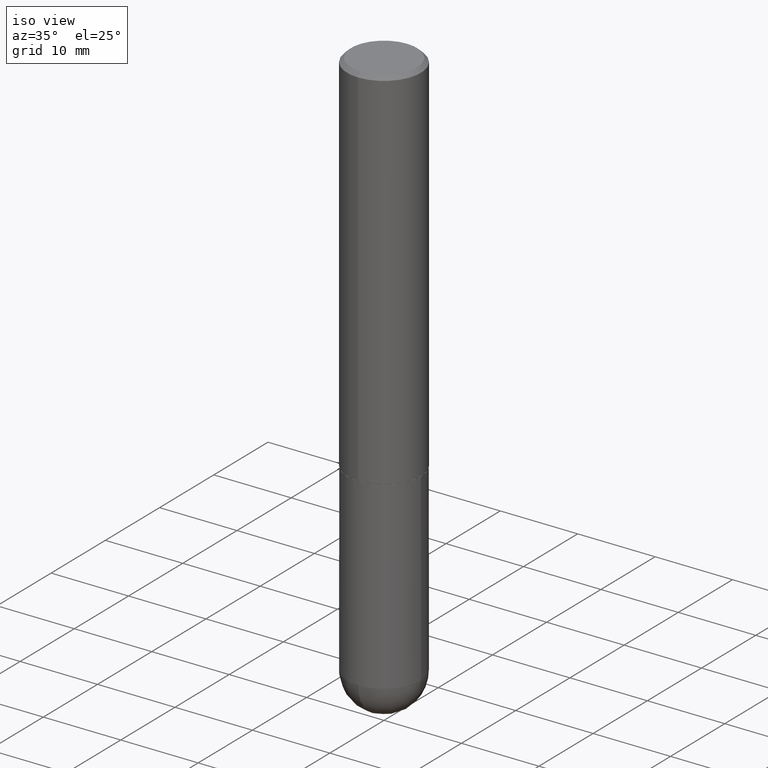
[diagram: clean part render]
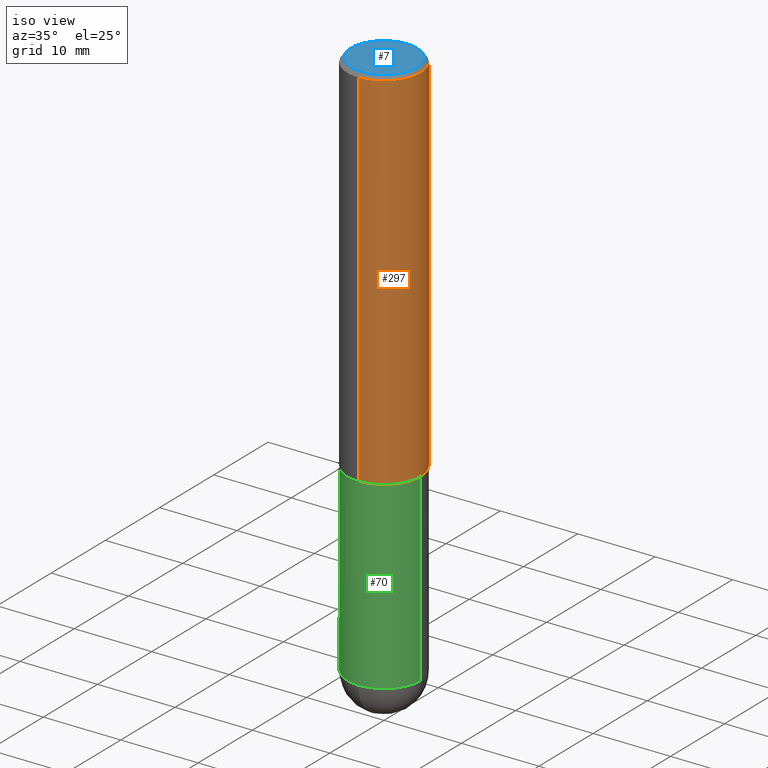
[diagram: same view with three faces highlighted in distinct colors, each labeled with its STEP entity id]
A machine part, iso view with three faces highlighted in distinct colors.
Their STEP definitions:

[orange] entity #297 — the highlighted cylindrical surface (partial cylindrical patch) has radius 4.7625 mm, axis along (-0, 0, 1).
#3 = CIRCLE ( 'NONE', #60, 0.1875000000000000555 ) ;
#18 = LINE ( 'NONE', #149, #41 ) ;
#41 = VECTOR ( 'NONE', #368, 39.37007874015748143 ) ;
#60 = AXIS2_PLACEMENT_3D ( 'NONE', #264, #137, #232 ) ;
#87 = AXIS2_PLACEMENT_3D ( 'NONE', #107, #162, #164 ) ;
#88 = DIRECTION ( 'NONE',  ( -2.444753274461231687E-29, 3.492506020997314198E-15, 1.000000000000000000 ) ) ;
#92 = EDGE_CURVE ( 'NONE', #312, #102, #391, .T. ) ;
#98 = EDGE_CURVE ( 'NONE', #272, #312, #269, .T. ) ;
#102 = VERTEX_POINT ( 'NONE', #330 ) ;
#107 = CARTESIAN_POINT ( 'NONE',  ( 0.000000000000000000, 0.000000000000000000, 0.000000000000000000 ) ) ;
#113 = AXIS2_PLACEMENT_3D ( 'NONE', #362, #337, #398 ) ;
#134 = ORIENTED_EDGE ( 'NONE', *, *, #98, .T. ) ;
#137 = DIRECTION ( 'NONE',  ( -2.444753274461231407E-29, 3.492506020997314198E-15, 1.000000000000000000 ) ) ;
#142 = EDGE_CURVE ( 'NONE', #272, #195, #18, .T. ) ;
#149 = CARTESIAN_POINT ( 'NONE',  ( -1.309305502066175994E-15, -0.1875000000000001388, 6.548448789369969298E-16 ) ) ;
#153 = VECTOR ( 'NONE', #88, 39.37007874015748143 ) ;
#162 = DIRECTION ( 'NONE',  ( -2.444753274461231407E-29, 3.492506020997314198E-15, 1.000000000000000000 ) ) ;
#164 = DIRECTION ( 'NONE',  ( -6.982962677686266711E-15, -1.000000000000000000, 3.492506020997314198E-15 ) ) ;
#180 = ORIENTED_EDGE ( 'NONE', *, *, #92, .T. ) ;
#195 = VERTEX_POINT ( 'NONE', #358 ) ;
#200 = CARTESIAN_POINT ( 'NONE',  ( 1.332267629550212500E-15, 0.1874999999999936995, -1.874000000000000554 ) ) ;
#221 = ORIENTED_EDGE ( 'NONE', *, *, #306, .F. ) ;
#232 = DIRECTION ( 'NONE',  ( -6.982962677686265922E-15, -1.000000000000000000, 3.483106191921934371E-15 ) ) ;
#257 = EDGE_LOOP ( 'NONE', ( #134, #180, #221, #397 ) ) ;
#264 = CARTESIAN_POINT ( 'NONE',  ( 4.889506548922472903E-31, -6.985012041994642398E-17, -0.02000000000000004205 ) ) ;
#269 = CIRCLE ( 'NONE', #113, 0.1875000000000002498 ) ;
#270 = CARTESIAN_POINT ( 'NONE',  ( 1.332267629550188637E-15, 0.1875000000000001388, -6.548448789369969298E-16 ) ) ;
#272 = VERTEX_POINT ( 'NONE', #290 ) ;
#290 = CARTESIAN_POINT ( 'NONE',  ( -1.309305502066130832E-15, -0.1875000000000068001, -1.873999999999999444 ) ) ;
#293 = CYLINDRICAL_SURFACE ( 'NONE', #87, 0.1875000000000001388 ) ;
#297 = ADVANCED_FACE ( 'NONE', ( #387 ), #293, .T. ) ;
#306 = EDGE_CURVE ( 'NONE', #195, #102, #3, .T. ) ;
#312 = VERTEX_POINT ( 'NONE', #200 ) ;
#330 = CARTESIAN_POINT ( 'NONE',  ( 1.309305502066175797E-15, 0.1874999999999999722, -0.02000000000000069431 ) ) ;
#337 = DIRECTION ( 'NONE',  ( -2.444753274461231407E-29, 3.492506020997314198E-15, 1.000000000000000000 ) ) ;
#358 = CARTESIAN_POINT ( 'NONE',  ( -1.286343374582161774E-15, -0.1875000000000001110, -0.01999999999999938979 ) ) ;
#362 = CARTESIAN_POINT ( 'NONE',  ( 4.581467636340347610E-29, -6.544956283348966620E-15, -1.874000000000000110 ) ) ;
#368 = DIRECTION ( 'NONE',  ( -2.444753274461231687E-29, 3.492506020997314198E-15, 1.000000000000000000 ) ) ;
#387 = FACE_OUTER_BOUND ( 'NONE', #257, .T. ) ;
#391 = LINE ( 'NONE', #270, #153 ) ;
#397 = ORIENTED_EDGE ( 'NONE', *, *, #142, .F. ) ;
#398 = DIRECTION ( 'NONE',  ( -6.982962677686266711E-15, -1.000000000000000000, 2.913971193241876822E-15 ) ) ;

[blue] entity #7 — the highlighted planar face has unit normal (0, -0, -1).
#7 = ADVANCED_FACE ( 'NONE', ( #130 ), #317, .F. ) ;
#10 = DIRECTION ( 'NONE',  ( -2.444753274461231407E-29, 3.492506020997314198E-15, 1.000000000000000000 ) ) ;
#20 = AXIS2_PLACEMENT_3D ( 'NONE', #45, #291, #171 ) ;
#22 = VERTEX_POINT ( 'NONE', #104 ) ;
#26 = CIRCLE ( 'NONE', #20, 0.1674999999999998990 ) ;
#29 = EDGE_LOOP ( 'NONE', ( #321, #54 ) ) ;
#45 = CARTESIAN_POINT ( 'NONE',  ( -3.030479401514550430E-45, 4.329257952882943825E-31, 1.239584964737351732E-16 ) ) ;
#54 = ORIENTED_EDGE ( 'NONE', *, *, #278, .T. ) ;
#104 = CARTESIAN_POINT ( 'NONE',  ( 1.239475875289312499E-15, 0.1674999999999998990, -4.610362620433146916E-16 ) ) ;
#111 = AXIS2_PLACEMENT_3D ( 'NONE', #389, #10, #262 ) ;
#130 = FACE_OUTER_BOUND ( 'NONE', #29, .T. ) ;
#147 = CARTESIAN_POINT ( 'NONE',  ( -1.217738394604446442E-15, -0.1674999999999998990, 7.089532549907849394E-16 ) ) ;
#171 = DIRECTION ( 'NONE',  ( -6.982962677686265922E-15, -1.000000000000000000, 3.492506020997314198E-15 ) ) ;
#203 = DIRECTION ( 'NONE',  ( 2.444753274461231127E-29, -3.492506020997314198E-15, -1.000000000000000000 ) ) ;
#247 = EDGE_CURVE ( 'NONE', #22, #412, #26, .T. ) ;
#254 = CARTESIAN_POINT ( 'NONE',  ( 1.169646248512448806E-15, 0.1674999999999998990, -5.230155102801821796E-16 ) ) ;
#262 = DIRECTION ( 'NONE',  ( -6.982962677686265922E-15, -1.000000000000000000, 3.492506020997314198E-15 ) ) ;
#278 = EDGE_CURVE ( 'NONE', #412, #22, #360, .T. ) ;
#291 = DIRECTION ( 'NONE',  ( -2.444753274461231407E-29, 3.492506020997314198E-15, 1.000000000000000000 ) ) ;
#302 = AXIS2_PLACEMENT_3D ( 'NONE', #254, #203, #350 ) ;
#317 = PLANE ( 'NONE',  #302 ) ;
#321 = ORIENTED_EDGE ( 'NONE', *, *, #247, .T. ) ;
#350 = DIRECTION ( 'NONE',  ( 6.982962677686265922E-15, 1.000000000000000000, -3.492506020997314198E-15 ) ) ;
#360 = CIRCLE ( 'NONE', #111, 0.1674999999999998990 ) ;
#389 = CARTESIAN_POINT ( 'NONE',  ( -3.030479401514550430E-45, 4.329257952882943825E-31, 1.239584964737351732E-16 ) ) ;
#412 = VERTEX_POINT ( 'NONE', #147 ) ;

[green] entity #70 — the highlighted cylindrical surface (partial cylindrical patch) has radius 4.7625 mm, axis along (-0, 0, 1).
#2 = DIRECTION ( 'NONE',  ( 1.000000000000000000, -6.982962677686270655E-15, 0.000000000000000000 ) ) ;
#14 = VECTOR ( 'NONE', #386, 39.37007874015748143 ) ;
#19 = EDGE_CURVE ( 'NONE', #367, #93, #163, .T. ) ;
#24 = CARTESIAN_POINT ( 'NONE',  ( -1.332267629550121781E-15, -0.1875000000000102141, -2.812499999999999556 ) ) ;
#31 = AXIS2_PLACEMENT_3D ( 'NONE', #280, #100, #2 ) ;
#39 = EDGE_CURVE ( 'NONE', #127, #344, #356, .T. ) ;
#63 = DIRECTION ( 'NONE',  ( 1.000000000000000000, -6.982962677686265922E-15, 4.876176775795935793E-29 ) ) ;
#68 = AXIS2_PLACEMENT_3D ( 'NONE', #243, #301, #401 ) ;
#70 = ADVANCED_FACE ( 'NONE', ( #188 ), #341, .T. ) ;
#77 = DIRECTION ( 'NONE',  ( 1.000000000000000000, -6.982962677686266711E-15, 0.000000000000000000 ) ) ;
#84 = DIRECTION ( 'NONE',  ( -2.445468806185136597E-29, 3.491481338843145583E-15, 1.000000000000000000 ) ) ;
#91 = AXIS2_PLACEMENT_3D ( 'NONE', #223, #156, #63 ) ;
#93 = VERTEX_POINT ( 'NONE', #392 ) ;
#100 = DIRECTION ( 'NONE',  ( -2.445468806185136597E-29, 3.491481338843145583E-15, 1.000000000000000000 ) ) ;
#115 = EDGE_LOOP ( 'NONE', ( #336, #281, #331, #220, #209 ) ) ;
#116 = CARTESIAN_POINT ( 'NONE',  ( -0.1875000000000000555, -6.850891758363436324E-15, -2.812500000000000000 ) ) ;
#127 = VERTEX_POINT ( 'NONE', #116 ) ;
#138 = EDGE_CURVE ( 'NONE', #344, #367, #288, .T. ) ;
#139 = CARTESIAN_POINT ( 'NONE',  ( -0.1875000000000000278, -6.850891758363434746E-15, -1.875000000000000000 ) ) ;
#156 = DIRECTION ( 'NONE',  ( -2.445468806185136597E-29, 3.491481338843145583E-15, 1.000000000000000000 ) ) ;
#163 = LINE ( 'NONE', #259, #14 ) ;
#175 = CARTESIAN_POINT ( 'NONE',  ( 0.1875000000000000555, -9.492464889979800759E-15, -2.812500000000000000 ) ) ;
#188 = FACE_OUTER_BOUND ( 'NONE', #115, .T. ) ;
#193 = VECTOR ( 'NONE', #394, 39.37007874015748143 ) ;
#209 = ORIENTED_EDGE ( 'NONE', *, *, #406, .F. ) ;
#220 = ORIENTED_EDGE ( 'NONE', *, *, #19, .T. ) ;
#222 = CIRCLE ( 'NONE', #334, 0.1875000000000000278 ) ;
#223 = CARTESIAN_POINT ( 'NONE',  ( 0.000000000000000000, 0.000000000000000000, 0.000000000000000000 ) ) ;
#243 = CARTESIAN_POINT ( 'NONE',  ( 6.877881017395696678E-29, -9.819791265496348060E-15, -2.812500000000000000 ) ) ;
#251 = VERTEX_POINT ( 'NONE', #139 ) ;
#259 = CARTESIAN_POINT ( 'NONE',  ( 0.1875000000000000555, -1.309305502066175205E-15, 9.142831454617382414E-30 ) ) ;
#274 = CARTESIAN_POINT ( 'NONE',  ( -0.1875000000000000555, 1.332267629550188243E-15, -9.223003294227950793E-30 ) ) ;
#280 = CARTESIAN_POINT ( 'NONE',  ( 6.877881017395696678E-29, -9.819791265496348060E-15, -2.812500000000000000 ) ) ;
#281 = ORIENTED_EDGE ( 'NONE', *, *, #39, .T. ) ;
#288 = CIRCLE ( 'NONE', #68, 0.1875000000000000555 ) ;
#300 = CARTESIAN_POINT ( 'NONE',  ( 4.585254011597131119E-29, -6.546527510330898707E-15, -1.875000000000000000 ) ) ;
#301 = DIRECTION ( 'NONE',  ( -2.445468806185136597E-29, 3.491481338843145583E-15, 1.000000000000000000 ) ) ;
#329 = LINE ( 'NONE', #274, #193 ) ;
#331 = ORIENTED_EDGE ( 'NONE', *, *, #138, .T. ) ;
#334 = AXIS2_PLACEMENT_3D ( 'NONE', #300, #84, #77 ) ;
#336 = ORIENTED_EDGE ( 'NONE', *, *, #345, .F. ) ;
#341 = CYLINDRICAL_SURFACE ( 'NONE', #91, 0.1875000000000000555 ) ;
#344 = VERTEX_POINT ( 'NONE', #24 ) ;
#345 = EDGE_CURVE ( 'NONE', #127, #251, #329, .T. ) ;
#356 = CIRCLE ( 'NONE', #31, 0.1875000000000000555 ) ;
#367 = VERTEX_POINT ( 'NONE', #175 ) ;
#386 = DIRECTION ( 'NONE',  ( -2.445468806185136877E-29, 3.491481338843145188E-15, 1.000000000000000000 ) ) ;
#392 = CARTESIAN_POINT ( 'NONE',  ( 0.1875000000000000278, -7.855833012397073715E-15, -1.875000000000000000 ) ) ;
#394 = DIRECTION ( 'NONE',  ( -2.445468806185136877E-29, 3.491481338843145188E-15, 1.000000000000000000 ) ) ;
#401 = DIRECTION ( 'NONE',  ( 1.000000000000000000, -6.982962677686270655E-15, 0.000000000000000000 ) ) ;
#406 = EDGE_CURVE ( 'NONE', #251, #93, #222, .T. ) ;